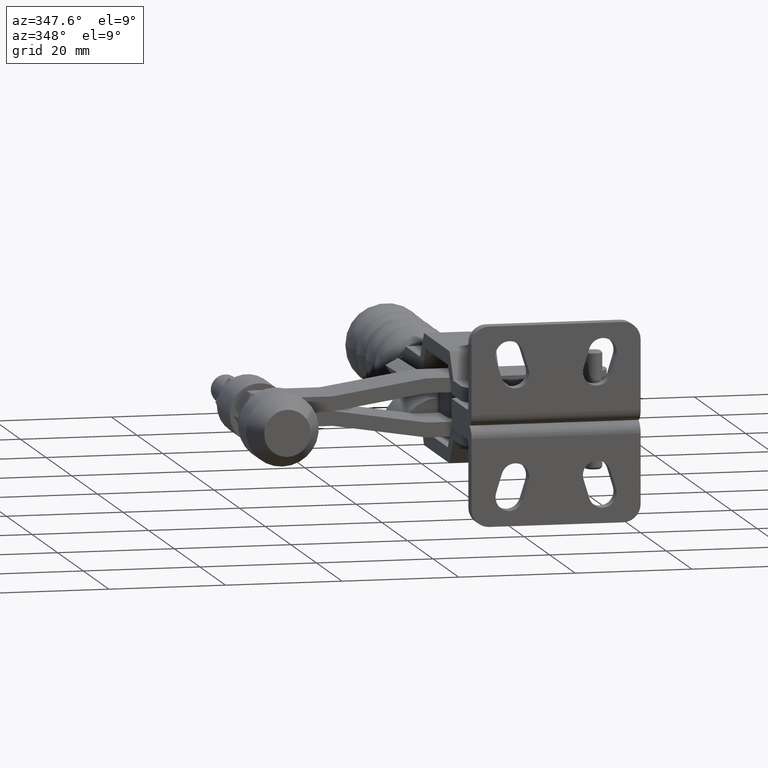
[diagram: clean part render]
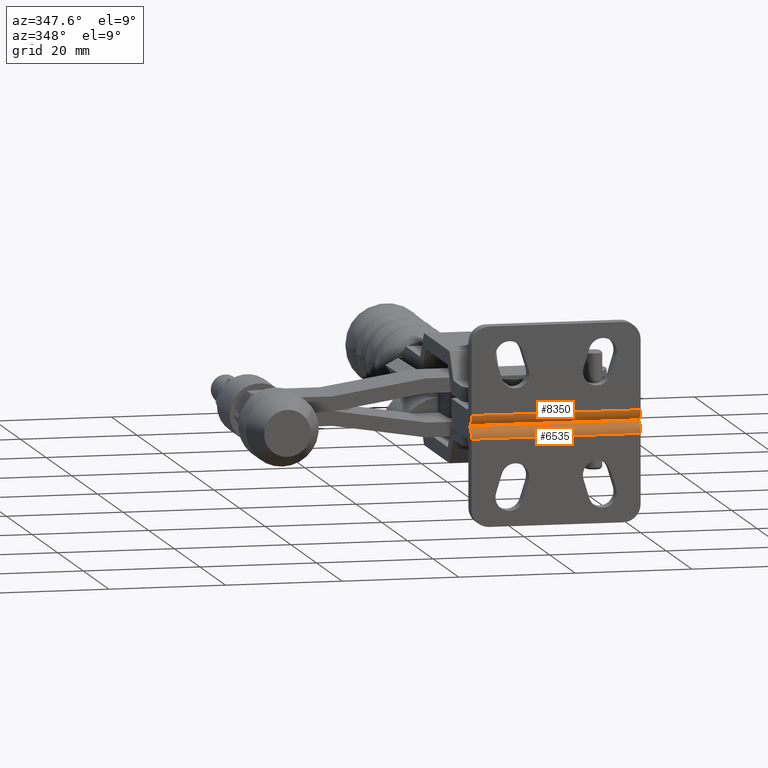
[diagram: same view with one multi-face feature highlighted, each face labeled with its STEP entity id]
A machine part, auxiliary view. The highlighted faces form ONE feature: a constant-radius fillet chain: 2 tangent blend faces with common blend radius 2 mm. The faces share edges in the B-rep.
Their STEP definitions:
[1] entity #6535 (Cylinder):
#197 = VECTOR ( 'NONE', #919, 1000.000000000000000 ) ;
#223 = DIRECTION ( 'NONE',  ( -1.000000000000000000, -0.0000000000000000000, 0.0000000000000000000 ) ) ;
#258 = DIRECTION ( 'NONE',  ( 0.0000000000000000000, 0.0000000000000000000, 1.000000000000000000 ) ) ;
#482 = VERTEX_POINT ( 'NONE', #1712 ) ;
#638 = AXIS2_PLACEMENT_3D ( 'NONE', #6499, #2045, #7227 ) ;
#919 = DIRECTION ( 'NONE',  ( 1.000000000000000000, 0.0000000000000000000, 0.0000000000000000000 ) ) ;
#924 = VECTOR ( 'NONE', #223, 1000.000000000000000 ) ;
#1005 = AXIS2_PLACEMENT_3D ( 'NONE', #6004, #2314, #9715 ) ;
#1712 = CARTESIAN_POINT ( 'NONE',  ( 1.274700509754809000E-013, 2.000000000000000000, 0.0000000000000000000 ) ) ;
#1793 = VERTEX_POINT ( 'NONE', #4361 ) ;
#2045 = DIRECTION ( 'NONE',  ( -1.000000000000000000, 8.223874256482633400E-015, 0.0000000000000000000 ) ) ;
#2313 = ORIENTED_EDGE ( 'NONE', *, *, #8122, .T. ) ;
#2314 = DIRECTION ( 'NONE',  ( 1.000000000000000000, 0.0000000000000000000, 0.0000000000000000000 ) ) ;
#2403 = ORIENTED_EDGE ( 'NONE', *, *, #6294, .T. ) ;
#2945 = LINE ( 'NONE', #8380, #924 ) ;
#3704 = ORIENTED_EDGE ( 'NONE', *, *, #9306, .T. ) ;
#4100 = VERTEX_POINT ( 'NONE', #9287 ) ;
#4279 = LINE ( 'NONE', #6157, #197 ) ;
#4361 = CARTESIAN_POINT ( 'NONE',  ( -28.99999999999980500, 1.999999999999999100, 0.0000000000000000000 ) ) ;
#4528 = CARTESIAN_POINT ( 'NONE',  ( -28.99999999999980500, 0.0000000000000000000, -2.000000000000000000 ) ) ;
#4817 = DIRECTION ( 'NONE',  ( 1.000000000000000000, 0.0000000000000000000, 0.0000000000000000000 ) ) ;
#4953 = CYLINDRICAL_SURFACE ( 'NONE', #1005, 2.000000000000000000 ) ;
#6004 = CARTESIAN_POINT ( 'NONE',  ( -28.99999999999980500, 2.000000000000000000, -2.000000000000000000 ) ) ;
#6157 = CARTESIAN_POINT ( 'NONE',  ( -28.99999999999980500, 0.0000000000000000000, -2.000000000000000000 ) ) ;
#6294 = EDGE_CURVE ( 'NONE', #4100, #482, #9426, .T. ) ;
#6499 = CARTESIAN_POINT ( 'NONE',  ( 1.283695372222837200E-013, 2.000000000000000000, -2.000000000000000000 ) ) ;
#6535 = ADVANCED_FACE ( 'NONE', ( #7105 ), #4953, .T. ) ;
#6941 = VERTEX_POINT ( 'NONE', #4528 ) ;
#7009 = AXIS2_PLACEMENT_3D ( 'NONE', #9222, #4817, #258 ) ;
#7105 = FACE_OUTER_BOUND ( 'NONE', #9310, .T. ) ;
#7227 = DIRECTION ( 'NONE',  ( -8.223874256482628700E-015, -1.000000000000000000, 0.0000000000000000000 ) ) ;
#7682 = ORIENTED_EDGE ( 'NONE', *, *, #9333, .T. ) ;
#8122 = EDGE_CURVE ( 'NONE', #6941, #4100, #4279, .T. ) ;
#8380 = CARTESIAN_POINT ( 'NONE',  ( -4.999999999999782400, 2.000000000000001800, 0.0000000000000000000 ) ) ;
#8588 = CIRCLE ( 'NONE', #7009, 2.000000000000000000 ) ;
#9222 = CARTESIAN_POINT ( 'NONE',  ( -28.99999999999980500, 2.000000000000000000, -2.000000000000000000 ) ) ;
#9287 = CARTESIAN_POINT ( 'NONE',  ( 1.110223024625156500E-013, 0.0000000000000000000, -2.000000000000000000 ) ) ;
#9306 = EDGE_CURVE ( 'NONE', #482, #1793, #2945, .T. ) ;
#9310 = EDGE_LOOP ( 'NONE', ( #7682, #2313, #2403, #3704 ) ) ;
#9333 = EDGE_CURVE ( 'NONE', #1793, #6941, #8588, .T. ) ;
#9426 = CIRCLE ( 'NONE', #638, 2.000000000000000000 ) ;
#9715 = DIRECTION ( 'NONE',  ( 0.0000000000000000000, 0.0000000000000000000, 1.000000000000000000 ) ) ;
[2] entity #8350 (Cylinder):
#223 = DIRECTION ( 'NONE',  ( -1.000000000000000000, -0.0000000000000000000, 0.0000000000000000000 ) ) ;
#306 = CARTESIAN_POINT ( 'NONE',  ( -28.99999999999980500, 0.0000000000000000000, 2.000000000000000000 ) ) ;
#482 = VERTEX_POINT ( 'NONE', #1712 ) ;
#924 = VECTOR ( 'NONE', #223, 1000.000000000000000 ) ;
#1105 = DIRECTION ( 'NONE',  ( 1.000000000000000000, 0.0000000000000000000, 0.0000000000000000000 ) ) ;
#1488 = CARTESIAN_POINT ( 'NONE',  ( 1.110223024625156500E-013, 0.0000000000000000000, 2.000000000000000000 ) ) ;
#1712 = CARTESIAN_POINT ( 'NONE',  ( 1.274700509754809000E-013, 2.000000000000000000, 0.0000000000000000000 ) ) ;
#1714 = ORIENTED_EDGE ( 'NONE', *, *, #9306, .F. ) ;
#1793 = VERTEX_POINT ( 'NONE', #4361 ) ;
#2145 = ORIENTED_EDGE ( 'NONE', *, *, #7696, .F. ) ;
#2276 = CARTESIAN_POINT ( 'NONE',  ( -28.99999999999980500, 2.000000000000000000, 2.000000000000000000 ) ) ;
#2774 = VERTEX_POINT ( 'NONE', #1488 ) ;
#2945 = LINE ( 'NONE', #8380, #924 ) ;
#2970 = ORIENTED_EDGE ( 'NONE', *, *, #8514, .F. ) ;
#3051 = DIRECTION ( 'NONE',  ( 0.0000000000000000000, 0.0000000000000000000, -1.000000000000000000 ) ) ;
#3077 = AXIS2_PLACEMENT_3D ( 'NONE', #4493, #9635, #5248 ) ;
#3277 = EDGE_CURVE ( 'NONE', #2774, #482, #7055, .T. ) ;
#3297 = ORIENTED_EDGE ( 'NONE', *, *, #3277, .F. ) ;
#3577 = CARTESIAN_POINT ( 'NONE',  ( -28.99999999999980500, 2.000000000000000000, 2.000000000000000000 ) ) ;
#3788 = FACE_OUTER_BOUND ( 'NONE', #8224, .T. ) ;
#4130 = AXIS2_PLACEMENT_3D ( 'NONE', #2276, #7437, #3051 ) ;
#4361 = CARTESIAN_POINT ( 'NONE',  ( -28.99999999999980500, 1.999999999999999100, 0.0000000000000000000 ) ) ;
#4493 = CARTESIAN_POINT ( 'NONE',  ( 1.283695372222837200E-013, 2.000000000000000000, 2.000000000000000000 ) ) ;
#4831 = VERTEX_POINT ( 'NONE', #8718 ) ;
#4934 = VECTOR ( 'NONE', #1105, 1000.000000000000000 ) ;
#5248 = DIRECTION ( 'NONE',  ( -8.223874256482628700E-015, -1.000000000000000000, 0.0000000000000000000 ) ) ;
#5526 = CYLINDRICAL_SURFACE ( 'NONE', #6752, 2.000000000000000000 ) ;
#6212 = CIRCLE ( 'NONE', #4130, 2.000000000000000000 ) ;
#6752 = AXIS2_PLACEMENT_3D ( 'NONE', #3577, #7216, #7960 ) ;
#7055 = CIRCLE ( 'NONE', #3077, 2.000000000000000000 ) ;
#7090 = LINE ( 'NONE', #306, #4934 ) ;
#7216 = DIRECTION ( 'NONE',  ( 1.000000000000000000, 0.0000000000000000000, 0.0000000000000000000 ) ) ;
#7437 = DIRECTION ( 'NONE',  ( -1.000000000000000000, -0.0000000000000000000, -0.0000000000000000000 ) ) ;
#7696 = EDGE_CURVE ( 'NONE', #4831, #2774, #7090, .T. ) ;
#7960 = DIRECTION ( 'NONE',  ( 0.0000000000000000000, 0.0000000000000000000, -1.000000000000000000 ) ) ;
#8224 = EDGE_LOOP ( 'NONE', ( #2970, #1714, #3297, #2145 ) ) ;
#8350 = ADVANCED_FACE ( 'NONE', ( #3788 ), #5526, .T. ) ;
#8380 = CARTESIAN_POINT ( 'NONE',  ( -4.999999999999782400, 2.000000000000001800, 0.0000000000000000000 ) ) ;
#8514 = EDGE_CURVE ( 'NONE', #1793, #4831, #6212, .T. ) ;
#8718 = CARTESIAN_POINT ( 'NONE',  ( -28.99999999999980500, 0.0000000000000000000, 2.000000000000000000 ) ) ;
#9306 = EDGE_CURVE ( 'NONE', #482, #1793, #2945, .T. ) ;
#9635 = DIRECTION ( 'NONE',  ( 1.000000000000000000, -8.223874256482633400E-015, -0.0000000000000000000 ) ) ;